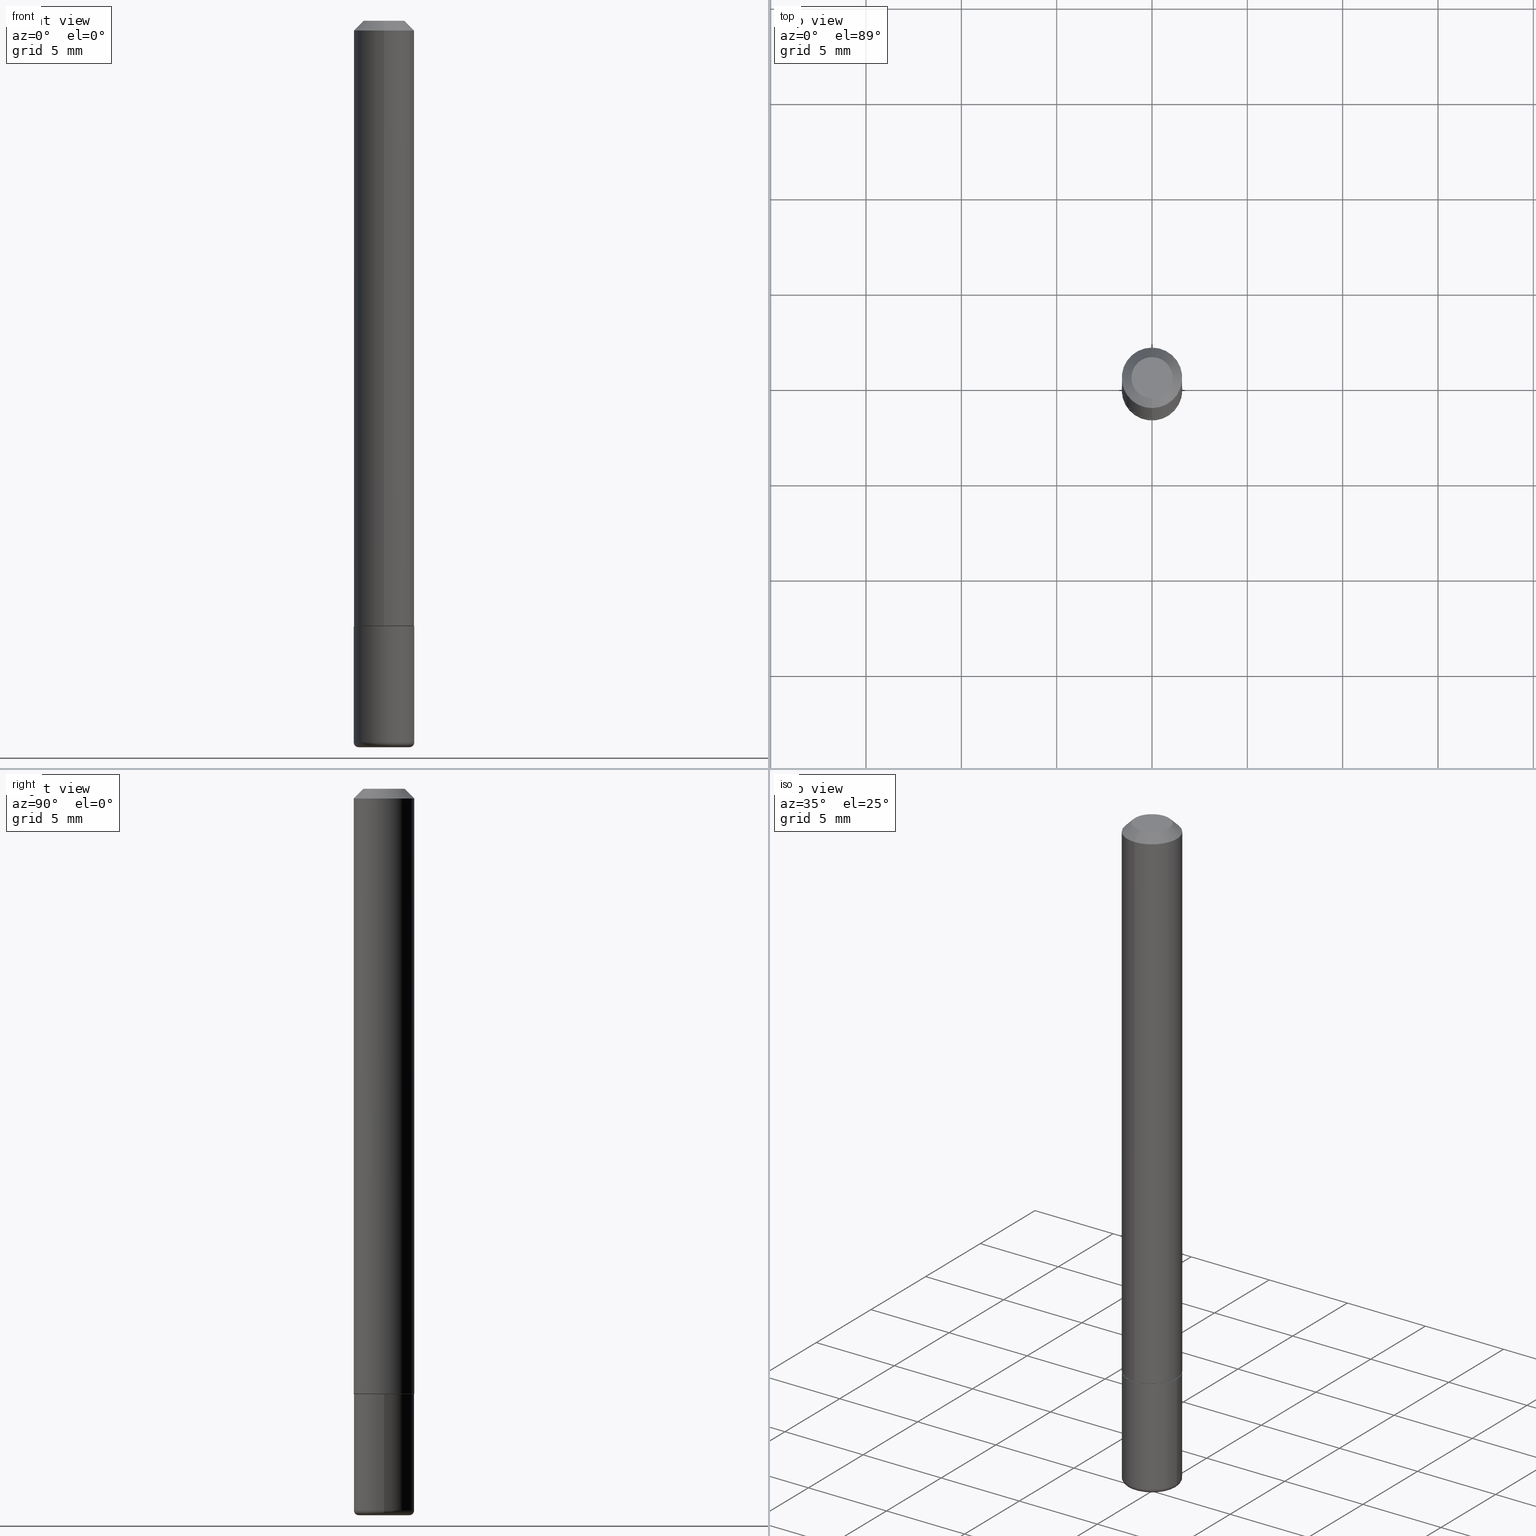
[diagram: canonical four-view strip — front | top / right | iso, engineering-drawing reading convention]
A machine part, canonical four-view strip (front | top / right | iso — engineering-drawing reading convention). The complete STEP part file that produces these views, byte-faithful:
ISO-10303-21;
HEADER;
FILE_DESCRIPTION (( 'STEP AP203' ),
    '1' );
FILE_NAME ('38770.STEP',
    '2024-03-03T11:43:34',
    ( '' ),
    ( '' ),
    'SwSTEP 2.0',
    'SolidWorks 2023',
    '' );
FILE_SCHEMA (( 'CONFIG_CONTROL_DESIGN' ));
ENDSEC;

DATA;
#1 = DIRECTION ( 'NONE',  ( -6.982962677686265922E-15, -1.000000000000000000, 3.465099818506815949E-15 ) ) ;
#2 = EDGE_CURVE ( 'NONE', #137, #171, #287, .T. ) ;
#3 = CLOSED_SHELL ( 'NONE', ( #258, #327, #167, #191, #310, #297, #140, #318 ) ) ;
#4 = AXIS2_PLACEMENT_3D ( 'NONE', #261, #188, #229 ) ;
#5 = CARTESIAN_POINT ( 'NONE',  ( 3.668203209277706016E-29, -5.237222008264719754E-15, -1.500000000000000444 ) ) ;
#6 = CC_DESIGN_PERSON_AND_ORGANIZATION_ASSIGNMENT ( #389, #73, ( #124 ) ) ;
#7 = DIRECTION ( 'NONE',  ( -2.463890923374057666E-29, 3.465099818506815949E-15, 1.000000000000000000 ) ) ;
#8 = DIRECTION ( 'NONE',  ( 1.000000000000000000, -6.982962677686265133E-15, 0.000000000000000000 ) ) ;
#9 = ORIENTED_EDGE ( 'NONE', *, *, #88, .T. ) ;
#10 = CIRCLE ( 'NONE', #266, 0.06250000000000012490 ) ;
#11 = ORIENTED_EDGE ( 'NONE', *, *, #174, .F. ) ;
#12 = CARTESIAN_POINT ( 'NONE',  ( 3.643748521215853910E-29, -5.202307194876288105E-15, -1.490000000000000213 ) ) ;
#13 = AXIS2_PLACEMENT_3D ( 'NONE', #352, #285, #1 ) ;
#14 = DIRECTION ( 'NONE',  ( 5.024295867788231995E-15, 0.7071067811865739960, 0.7071067811865208164 ) ) ;
#15 = COORDINATED_UNIVERSAL_TIME_OFFSET ( 5, 0, .BEHIND. ) ;
#16 = VERTEX_POINT ( 'NONE', #264 ) ;
#17 = ORIENTED_EDGE ( 'NONE', *, *, #248, .F. ) ;
#18 = DIRECTION ( 'NONE',  ( -2.463890923374057666E-29, 3.465099818506815949E-15, 1.000000000000000000 ) ) ;
#19 =( NAMED_UNIT ( * ) SI_UNIT ( $, .STERADIAN. ) SOLID_ANGLE_UNIT ( ) );
#20 = VERTEX_POINT ( 'NONE', #328 ) ;
#21 = AXIS2_PLACEMENT_3D ( 'NONE', #379, #100, #163 ) ;
#22 = ORGANIZATION ( 'UNSPECIFIED', 'UNSPECIFIED', '' ) ;
#23 = PLANE ( 'NONE',  #295 ) ;
#24 = ORIENTED_EDGE ( 'NONE', *, *, #117, .T. ) ;
#25 = CARTESIAN_POINT ( 'NONE',  ( 0.000000000000000000, 0.000000000000000000, 0.000000000000000000 ) ) ;
#26 = ORIENTED_EDGE ( 'NONE', *, *, #143, .F. ) ;
#27 = AXIS2_PLACEMENT_3D ( 'NONE', #290, #7, #77 ) ;
#28 = CC_DESIGN_DATE_AND_TIME_ASSIGNMENT ( #282, #97, ( #202 ) ) ;
#29 = AXIS2_PLACEMENT_3D ( 'NONE', #161, #288, #267 ) ;
#30 = DIRECTION ( 'NONE',  ( -2.463890923374057666E-29, 3.465099818506815949E-15, 1.000000000000000000 ) ) ;
#31 = DIRECTION ( 'NONE',  ( 0.000000000000000000, 0.000000000000000000, 1.000000000000000000 ) ) ;
#32 = CARTESIAN_POINT ( 'NONE',  ( 0.05250000000000001887, -5.603827548843248915E-15, -1.500000000000000444 ) ) ;
#33 = ORIENTED_EDGE ( 'NONE', *, *, #82, .F. ) ;
#34 = COORDINATED_UNIVERSAL_TIME_OFFSET ( 5, 0, .BEHIND. ) ;
#35 = EDGE_CURVE ( 'NONE', #137, #275, #149, .T. ) ;
#36 = ORIENTED_EDGE ( 'NONE', *, *, #302, .T. ) ;
#37 = CIRCLE ( 'NONE', #60, 0.04250000000000002387 ) ;
#38 = PRODUCT ( '38770', '38770', '', ( #347 ) ) ;
#39 = CC_DESIGN_PERSON_AND_ORGANIZATION_ASSIGNMENT ( #63, #314, ( #202 ) ) ;
#40 = DIRECTION ( 'NONE',  ( -2.463890923374057666E-29, 3.465099818506815949E-15, 1.000000000000000000 ) ) ;
#41 = EDGE_LOOP ( 'NONE', ( #363, #54, #157, #298 ) ) ;
#42 = MANIFOLD_SOLID_BREP ( 'Body-Move/Copy2[2]', #3 ) ;
#43 = DIRECTION ( 'NONE',  ( 1.000000000000000000, -6.982962677686265133E-15, 0.000000000000000000 ) ) ;
#44 = PERSON_AND_ORGANIZATION ( #83, #22 ) ;
#45 = EDGE_LOOP ( 'NONE', ( #153, #169 ) ) ;
#46 = APPROVAL ( #380, 'UNSPECIFIED' ) ;
#47 = EDGE_LOOP ( 'NONE', ( #84, #154 ) ) ;
#48 = APPLICATION_CONTEXT ( 'configuration controlled 3d designs of mechanical parts and assemblies' ) ;
#49 = DIRECTION ( 'NONE',  ( -1.000000000000000000, 6.982962677686265922E-15, -4.876176775795935793E-29 ) ) ;
#50 = EDGE_CURVE ( 'NONE', #275, #137, #123, .T. ) ;
#51 = CARTESIAN_POINT ( 'NONE',  ( 3.079863654217572643E-29, -4.331374773133521120E-15, -1.250000000000000222 ) ) ;
#52 = EDGE_LOOP ( 'NONE', ( #206, #36, #11, #26 ) ) ;
#53 = CARTESIAN_POINT ( 'NONE',  ( -0.06250000000000001388, -4.339240224365048067E-15, -1.250000000000000222 ) ) ;
#54 = ORIENTED_EDGE ( 'NONE', *, *, #244, .T. ) ;
#55 = CARTESIAN_POINT ( 'NONE',  ( -3.601761448830052926E-16, -0.04250000000000002387, 1.205344527316432809E-16 ) ) ;
#56 = CARTESIAN_POINT ( 'NONE',  ( 3.079863654217572643E-29, -4.331374773133521120E-15, -1.250000000000000222 ) ) ;
#57 = DIRECTION ( 'NONE',  ( -2.445468806185136597E-29, 3.491481338843145583E-15, 1.000000000000000000 ) ) ;
#58 = ORIENTED_EDGE ( 'NONE', *, *, #99, .T. ) ;
#59 = VECTOR ( 'NONE', #254, 39.37007874015748854 ) ;
#60 = AXIS2_PLACEMENT_3D ( 'NONE', #107, #78, #340 ) ;
#61 = EDGE_CURVE ( 'NONE', #180, #137, #381, .T. ) ;
#62 = DIRECTION ( 'NONE',  ( -2.445468806185136877E-29, 3.491481338843145188E-15, 1.000000000000000000 ) ) ;
#63 = PERSON_AND_ORGANIZATION ( #83, #22 ) ;
#64 = PERSON_AND_ORGANIZATION_ROLE ( 'classification_officer' ) ;
#65 = TOROIDAL_SURFACE ( 'NONE', #210, 0.05250000000000001887, 0.01000000000000008174 ) ;
#66 = ORIENTED_EDGE ( 'NONE', *, *, #302, .F. ) ;
#67 = FACE_OUTER_BOUND ( 'NONE', #172, .T. ) ;
#68 = APPROVAL_ROLE ( '' ) ;
#69 = DIRECTION ( 'NONE',  ( -6.982962677686266711E-15, -1.000000000000000000, 3.491481338843145583E-15 ) ) ;
#70 = APPROVAL_PERSON_ORGANIZATION ( #44, #46, #71 ) ;
#71 = APPROVAL_ROLE ( '' ) ;
#72 = LENGTH_MEASURE_WITH_UNIT ( LENGTH_MEASURE( 0.02539999999999999897 ), #388 );
#73 = PERSON_AND_ORGANIZATION_ROLE ( 'design_supplier' ) ;
#74 = CARTESIAN_POINT ( 'NONE',  ( 3.079863654217572643E-29, -4.331374773133521120E-15, -1.250000000000000222 ) ) ;
#75 = VECTOR ( 'NONE', #127, 39.37007874015748143 ) ;
#76 = CC_DESIGN_APPROVAL ( #208, ( #202 ) ) ;
#77 = DIRECTION ( 'NONE',  ( -6.982962677686265922E-15, -1.000000000000000000, 3.483106191921934765E-15 ) ) ;
#78 = DIRECTION ( 'NONE',  ( -2.463890923374057666E-29, 3.465099818506815949E-15, 1.000000000000000000 ) ) ;
#79 = DESIGN_CONTEXT ( 'detailed design', #48, 'design' ) ;
#80 = EDGE_CURVE ( 'NONE', #361, #16, #106, .T. ) ;
#81 = CC_DESIGN_PERSON_AND_ORGANIZATION_ASSIGNMENT ( #279, #122, ( #38 ) ) ;
#82 = EDGE_CURVE ( 'NONE', #342, #20, #415, .T. ) ;
#83 = PERSON ( 'UNSPECIFIED', 'UNSPECIFIED', 'UNSPECIFIED', ('UNSPECIFIED'), ('UNSPECIFIED'), ('UNSPECIFIED') ) ;
#84 = ORIENTED_EDGE ( 'NONE', *, *, #414, .T. ) ;
#85 = ORIENTED_EDGE ( 'NONE', *, *, #80, .F. ) ;
#86 = LINE ( 'NONE', #176, #59 ) ;
#87 = CARTESIAN_POINT ( 'NONE',  ( 3.056836007731421306E-29, -4.364351673553933260E-15, -1.250000000000000222 ) ) ;
#88 = EDGE_CURVE ( 'NONE', #306, #216, #370, .T. ) ;
#89 = AXIS2_PLACEMENT_3D ( 'NONE', #131, #228, #236 ) ;
#90 = AXIS2_PLACEMENT_3D ( 'NONE', #292, #134, #263 ) ;
#91 = CARTESIAN_POINT ( 'NONE',  ( 3.668203209277706016E-29, -5.237222008264719754E-15, -1.500000000000000444 ) ) ;
#92 = APPROVAL_DATE_TIME ( #343, #208 ) ;
#93 = DIRECTION ( 'NONE',  ( -6.982962677686265133E-15, -1.000000000000000000, 4.370956789862812472E-15 ) ) ;
#94 = PERSON_AND_ORGANIZATION ( #83, #22 ) ;
#95 = ORIENTED_EDGE ( 'NONE', *, *, #102, .T. ) ;
#96 = DIRECTION ( 'NONE',  ( 6.982962677686265922E-15, 1.000000000000000000, -3.483106191921934765E-15 ) ) ;
#97 = DATE_TIME_ROLE ( 'creation_date' ) ;
#98 = CARTESIAN_POINT ( 'NONE',  ( 0.000000000000000000, 0.000000000000000000, 0.000000000000000000 ) ) ;
#99 = EDGE_CURVE ( 'NONE', #20, #16, #243, .T. ) ;
#100 = DIRECTION ( 'NONE',  ( -2.463890923374057666E-29, 3.465099818506815949E-15, 1.000000000000000000 ) ) ;
#101 = AXIS2_PLACEMENT_3D ( 'NONE', #51, #18, #240 ) ;
#102 = EDGE_CURVE ( 'NONE', #306, #16, #357, .T. ) ;
#103 = CARTESIAN_POINT ( 'NONE',  ( 4.927781846748132603E-31, -6.930199637013654924E-17, -0.02000000000000006981 ) ) ;
#104 = PERSON_AND_ORGANIZATION_ROLE ( 'creator' ) ;
#105 = CARTESIAN_POINT ( 'NONE',  ( 4.369837824924922257E-16, 0.06149999999999564843, -1.250000000000000666 ) ) ;
#106 = LINE ( 'NONE', #262, #186 ) ;
#107 = CARTESIAN_POINT ( 'NONE',  ( 6.586544559531654856E-46, -9.263005168494343437E-32, -2.673228955489647487E-17 ) ) ;
#108 = ORIENTED_EDGE ( 'NONE', *, *, #99, .F. ) ;
#109 = ADVANCED_FACE ( 'NONE', ( #322 ), #203, .T. ) ;
#110 = VECTOR ( 'NONE', #412, 39.37007874015748143 ) ;
#111 = DATE_AND_TIME ( #199, #231 ) ;
#112 = AXIS2_PLACEMENT_3D ( 'NONE', #181, #31, #312 ) ;
#113 = AXIS2_PLACEMENT_3D ( 'NONE', #387, #354, #128 ) ;
#114 = CARTESIAN_POINT ( 'NONE',  ( 0.000000000000000000, 0.000000000000000000, 0.000000000000000000 ) ) ;
#115 = CIRCLE ( 'NONE', #13, 0.04250000000000002387 ) ;
#116 = APPROVAL_STATUS ( 'not_yet_approved' ) ;
#117 = EDGE_CURVE ( 'NONE', #386, #180, #138, .T. ) ;
#118 = ORIENTED_EDGE ( 'NONE', *, *, #61, .T. ) ;
#119 = FACE_OUTER_BOUND ( 'NONE', #205, .T. ) ;
#120 = DIRECTION ( 'NONE',  ( -1.000000000000000000, 6.982962677686265922E-15, -4.876176775795935793E-29 ) ) ;
#121 = CARTESIAN_POINT ( 'NONE',  ( 0.000000000000000000, 0.000000000000000000, 0.000000000000000000 ) ) ;
#122 = PERSON_AND_ORGANIZATION_ROLE ( 'design_owner' ) ;
#123 = CIRCLE ( 'NONE', #113, 0.06250000000000001388 ) ;
#124 = PRODUCT_DEFINITION_FORMATION_WITH_SPECIFIED_SOURCE ( 'ANY', '', #38, .NOT_KNOWN. ) ;
#125 = DIRECTION ( 'NONE',  ( 6.982962677686265922E-15, 1.000000000000000000, -3.483106191921934765E-15 ) ) ;
#126 = EDGE_CURVE ( 'NONE', #16, #20, #175, .T. ) ;
#127 = DIRECTION ( 'NONE',  ( -2.445468806185136877E-29, 3.491481338843145188E-15, 1.000000000000000000 ) ) ;
#128 = DIRECTION ( 'NONE',  ( 1.000000000000000000, -6.982962677686261189E-15, 0.000000000000000000 ) ) ;
#129 = PERSON_AND_ORGANIZATION ( #83, #22 ) ;
#130 = CIRCLE ( 'NONE', #158, 0.05250000000000001887 ) ;
#131 = CARTESIAN_POINT ( 'NONE',  ( 3.643748521215853910E-29, -5.202307194876288105E-15, -1.490000000000000213 ) ) ;
#132 = DIRECTION ( 'NONE',  ( 4.937700262164541731E-15, 0.7071067811865442421, -0.7071067811865507924 ) ) ;
#133 = DIRECTION ( 'NONE',  ( -6.982962677686265922E-15, -1.000000000000000000, 3.483106191921934765E-15 ) ) ;
#134 = DIRECTION ( 'NONE',  ( -2.445468806185136597E-29, 3.491481338843145583E-15, 1.000000000000000000 ) ) ;
#135 = ORIENTED_EDGE ( 'NONE', *, *, #117, .F. ) ;
#136 = EDGE_LOOP ( 'NONE', ( #336, #135 ) ) ;
#137 = VERTEX_POINT ( 'NONE', #366 ) ;
#138 = CIRCLE ( 'NONE', #316, 0.05250000000000001887 ) ;
#139 = CONICAL_SURFACE ( 'NONE', #272, 0.06250000000000001388, 0.7853981633974471688 ) ;
#140 = ADVANCED_FACE ( 'NONE', ( #241 ), #338, .F. ) ;
#141 = FACE_OUTER_BOUND ( 'NONE', #332, .T. ) ;
#142 = SHAPE_DEFINITION_REPRESENTATION ( #190, #281 ) ;
#143 = EDGE_CURVE ( 'NONE', #198, #216, #86, .T. ) ;
#144 = APPROVAL_DATE_TIME ( #111, #46 ) ;
#145 = DIRECTION ( 'NONE',  ( -2.463890923374057386E-29, 3.465099818506815949E-15, 1.000000000000000000 ) ) ;
#146 = CONICAL_SURFACE ( 'NONE', #101, 0.06149999999999997830, 0.7853981633974824739 ) ;
#147 = EDGE_CURVE ( 'NONE', #216, #20, #184, .T. ) ;
#148 = DIRECTION ( 'NONE',  ( -2.445468806185136597E-29, 3.491481338843145583E-15, 1.000000000000000000 ) ) ;
#149 = CIRCLE ( 'NONE', #404, 0.06250000000000001388 ) ;
#150 = CARTESIAN_POINT ( 'NONE',  ( 4.440892098500787878E-16, 0.06249999999999578809, -1.249000000000000554 ) ) ;
#151 = AXIS2_PLACEMENT_3D ( 'NONE', #25, #148, #407 ) ;
#152 = PERSON_AND_ORGANIZATION ( #83, #22 ) ;
#153 = ORIENTED_EDGE ( 'NONE', *, *, #399, .F. ) ;
#154 = ORIENTED_EDGE ( 'NONE', *, *, #373, .T. ) ;
#155 = COORDINATED_UNIVERSAL_TIME_OFFSET ( 5, 0, .BEHIND. ) ;
#156 = APPLICATION_PROTOCOL_DEFINITION ( 'international standard', 'config_control_design', 1994, #268 ) ;
#157 = ORIENTED_EDGE ( 'NONE', *, *, #35, .F. ) ;
#158 = AXIS2_PLACEMENT_3D ( 'NONE', #324, #358, #8 ) ;
#159 = CC_DESIGN_APPROVAL ( #46, ( #405 ) ) ;
#160 = CARTESIAN_POINT ( 'NONE',  ( 0.06250000000000001388, -4.364351673553918173E-16, 3.047610484872460571E-30 ) ) ;
#161 = CARTESIAN_POINT ( 'NONE',  ( 3.079863654217572643E-29, -4.331374773133521120E-15, -1.250000000000000222 ) ) ;
#162 = AXIS2_PLACEMENT_3D ( 'NONE', #305, #214, #96 ) ;
#163 = DIRECTION ( 'NONE',  ( -6.982962677686265133E-15, -1.000000000000000000, 4.370956789862812472E-15 ) ) ;
#164 = DIRECTION ( 'NONE',  ( -2.463890923374057666E-29, 3.465099818506815949E-15, 1.000000000000000000 ) ) ;
#165 = EDGE_LOOP ( 'NONE', ( #66, #331, #252, #369 ) ) ;
#166 = EDGE_LOOP ( 'NONE', ( #296, #95, #108, #207 ) ) ;
#167 = ADVANCED_FACE ( 'NONE', ( #276 ), #359, .T. ) ;
#168 = AXIS2_PLACEMENT_3D ( 'NONE', #213, #274, #270 ) ;
#169 = ORIENTED_EDGE ( 'NONE', *, *, #353, .F. ) ;
#170 = MANIFOLD_SOLID_BREP ( 'Body-Move/Copy2[1]', #325 ) ;
#171 = VERTEX_POINT ( 'NONE', #309 ) ;
#172 = EDGE_LOOP ( 'NONE', ( #392, #378, #294, #409 ) ) ;
#173 = FACE_OUTER_BOUND ( 'NONE', #41, .T. ) ;
#174 = EDGE_CURVE ( 'NONE', #216, #306, #10, .T. ) ;
#175 = CIRCLE ( 'NONE', #27, 0.06250000000000001388 ) ;
#176 = CARTESIAN_POINT ( 'NONE',  ( -4.294522046776743965E-16, -0.06150000000000430816, -1.250000000000000000 ) ) ;
#177 = DIRECTION ( 'NONE',  ( 1.000000000000000000, -6.982962677686269077E-15, 0.000000000000000000 ) ) ;
#178 = AXIS2_PLACEMENT_3D ( 'NONE', #91, #321, #120 ) ;
#179 = ORIENTED_EDGE ( 'NONE', *, *, #35, .T. ) ;
#180 = VERTEX_POINT ( 'NONE', #32 ) ;
#181 = CARTESIAN_POINT ( 'NONE',  ( 0.000000000000000000, 0.000000000000000000, 0.000000000000000000 ) ) ;
#182 = ORIENTED_EDGE ( 'NONE', *, *, #234, .F. ) ;
#183 = CARTESIAN_POINT ( 'NONE',  ( 2.967759138016664535E-16, 0.04250000000000002387, -1.606328870639880302E-16 ) ) ;
#184 = LINE ( 'NONE', #217, #110 ) ;
#185 = DIMENSIONAL_EXPONENTS ( 1.000000000000000000, 0.000000000000000000, 0.000000000000000000, 0.000000000000000000, 0.000000000000000000, 0.000000000000000000, 0.000000000000000000 ) ;
#186 = VECTOR ( 'NONE', #132, 39.37007874015748143 ) ;
#187 = CIRCLE ( 'NONE', #29, 0.06149999999999997830 ) ;
#188 = DIRECTION ( 'NONE',  ( 7.105427357601001859E-15, 1.000000000000000000, -3.491481338843145583E-15 ) ) ;
#189 = CARTESIAN_POINT ( 'NONE',  ( 4.440892098500630106E-16, 0.06250000000000006939, -2.165687386566762434E-16 ) ) ;
#190 = PRODUCT_DEFINITION_SHAPE ( 'NONE', 'NONE',  #202 ) ;
#191 = ADVANCED_FACE ( 'NONE', ( #119 ), #139, .T. ) ;
#192 = FACE_OUTER_BOUND ( 'NONE', #52, .T. ) ;
#193 = DIRECTION ( 'NONE',  ( -2.445468806185136597E-29, 3.491481338843145583E-15, 1.000000000000000000 ) ) ;
#194 =( CONVERSION_BASED_UNIT ( 'INCH', #72 ) LENGTH_UNIT ( ) NAMED_UNIT ( #185 ) );
#195 =( GEOMETRIC_REPRESENTATION_CONTEXT ( 3 ) GLOBAL_UNCERTAINTY_ASSIGNED_CONTEXT ( ( #235 ) ) GLOBAL_UNIT_ASSIGNED_CONTEXT ( ( #194, #367, #19 ) ) REPRESENTATION_CONTEXT ( 'NONE', 'WORKASPACE' ) );
#196 = DIRECTION ( 'NONE',  ( -6.982962677686265922E-15, -1.000000000000000000, 4.442029257990673709E-15 ) ) ;
#197 = ORIENTED_EDGE ( 'NONE', *, *, #82, .T. ) ;
#198 = VERTEX_POINT ( 'NONE', #351 ) ;
#199 = CALENDAR_DATE ( 2024, 3, 3 ) ;
#200 = ADVANCED_FACE ( 'NONE', ( #67 ), #313, .T. ) ;
#201 = ORIENTED_EDGE ( 'NONE', *, *, #102, .F. ) ;
#202 = PRODUCT_DEFINITION ( 'UNKNOWN', '', #124, #79 ) ;
#203 = TOROIDAL_SURFACE ( 'NONE', #89, 0.05250000000000001887, 0.01000000000000008174 ) ;
#204 = CIRCLE ( 'NONE', #289, 0.06250000000000001388 ) ;
#205 = EDGE_LOOP ( 'NONE', ( #33, #17, #269, #372 ) ) ;
#206 = ORIENTED_EDGE ( 'NONE', *, *, #399, .T. ) ;
#207 = ORIENTED_EDGE ( 'NONE', *, *, #147, .F. ) ;
#208 = APPROVAL ( #223, 'UNSPECIFIED' ) ;
#209 = VECTOR ( 'NONE', #377, 39.37007874015748143 ) ;
#210 = AXIS2_PLACEMENT_3D ( 'NONE', #12, #341, #335 ) ;
#211 = APPLICATION_PROTOCOL_DEFINITION ( 'international standard', 'config_control_design', 1994, #48 ) ;
#212 = DIRECTION ( 'NONE',  ( 6.982962677686265922E-15, 1.000000000000000000, -3.465099818506815949E-15 ) ) ;
#213 = CARTESIAN_POINT ( 'NONE',  ( 3.079863654217572643E-29, -4.331374773133521120E-15, -1.250000000000000222 ) ) ;
#214 = DIRECTION ( 'NONE',  ( 2.463890923374057666E-29, -3.465099818506815949E-15, -1.000000000000000000 ) ) ;
#215 = COORDINATED_UNIVERSAL_TIME_OFFSET ( 5, 0, .BEHIND. ) ;
#216 = VERTEX_POINT ( 'NONE', #291 ) ;
#217 = CARTESIAN_POINT ( 'NONE',  ( -4.364351673553921131E-16, -0.06250000000000006939, 2.165687386566762434E-16 ) ) ;
#218 = CALENDAR_DATE ( 2024, 3, 3 ) ;
#219 = CARTESIAN_POINT ( 'NONE',  ( -0.06250000000000005551, -4.758217985026225489E-15, -1.490000000000000213 ) ) ;
#220 = ORIENTED_EDGE ( 'NONE', *, *, #244, .F. ) ;
#221 = AXIS2_PLACEMENT_3D ( 'NONE', #121, #253, #311 ) ;
#222 = CARTESIAN_POINT ( 'NONE',  ( 4.405364961712931735E-16, 0.06149999999999564843, -1.250000000000000666 ) ) ;
#223 = APPROVAL_STATUS ( 'not_yet_approved' ) ;
#224 = EDGE_LOOP ( 'NONE', ( #201, #9, #329, #242 ) ) ;
#225 = CARTESIAN_POINT ( 'NONE',  ( 4.927781846748132603E-31, -6.930199637013654924E-17, -0.02000000000000006981 ) ) ;
#226 = APPROVAL_ROLE ( '' ) ;
#227 = EDGE_CURVE ( 'NONE', #180, #386, #130, .T. ) ;
#228 = DIRECTION ( 'NONE',  ( -2.445468806185136597E-29, 3.491481338843145583E-15, 1.000000000000000000 ) ) ;
#229 = DIRECTION ( 'NONE',  ( -1.000000000000000000, 7.105427357600964782E-15, 0.000000000000000000 ) ) ;
#230 = CALENDAR_DATE ( 2024, 3, 3 ) ;
#231 = LOCAL_TIME ( 6, 43, 34.00000000000000000, #15 ) ;
#232 = FACE_OUTER_BOUND ( 'NONE', #165, .T. ) ;
#233 = DIRECTION ( 'NONE',  ( -4.851104656540957964E-15, -0.7071067811865491270, -0.7071067811865459074 ) ) ;
#234 = EDGE_CURVE ( 'NONE', #342, #361, #37, .T. ) ;
#235 = UNCERTAINTY_MEASURE_WITH_UNIT (LENGTH_MEASURE( 1.000000000000000082E-05 ), #194, 'distance_accuracy_value', 'NONE');
#236 = DIRECTION ( 'NONE',  ( 1.000000000000000000, -6.982962677686266711E-15, 4.883557194083112901E-29 ) ) ;
#237 = DIRECTION ( 'NONE',  ( 1.000000000000000000, -6.982962677686275388E-15, 0.000000000000000000 ) ) ;
#238 = AXIS2_PLACEMENT_3D ( 'NONE', #56, #145, #273 ) ;
#239 = CC_DESIGN_APPROVAL ( #364, ( #124 ) ) ;
#240 = DIRECTION ( 'NONE',  ( -6.982962677686265922E-15, -1.000000000000000000, 4.442029257990673709E-15 ) ) ;
#241 = FACE_OUTER_BOUND ( 'NONE', #45, .T. ) ;
#242 = ORIENTED_EDGE ( 'NONE', *, *, #126, .F. ) ;
#243 = CIRCLE ( 'NONE', #391, 0.06250000000000001388 ) ;
#244 = EDGE_CURVE ( 'NONE', #386, #275, #365, .T. ) ;
#245 = DIRECTION ( 'NONE',  ( 2.463890923374057386E-29, -3.465099818506815949E-15, -1.000000000000000000 ) ) ;
#246 = PLANE ( 'NONE',  #317 ) ;
#247 = PLANE ( 'NONE',  #178 ) ;
#248 = EDGE_CURVE ( 'NONE', #361, #342, #115, .T. ) ;
#249 = FACE_OUTER_BOUND ( 'NONE', #303, .T. ) ;
#250 = APPROVAL_PERSON_ORGANIZATION ( #255, #208, #68 ) ;
#251 = CARTESIAN_POINT ( 'NONE',  ( -0.06250000000000001388, 4.440892098500627148E-16, -3.074334431409317165E-30 ) ) ;
#252 = ORIENTED_EDGE ( 'NONE', *, *, #143, .T. ) ;
#253 = DIRECTION ( 'NONE',  ( -2.463890923374057666E-29, 3.465099818506815949E-15, 1.000000000000000000 ) ) ;
#254 = DIRECTION ( 'NONE',  ( -4.937700262164715281E-15, -0.7071067811865691111, 0.7071067811865257013 ) ) ;
#255 = PERSON_AND_ORGANIZATION ( #83, #22 ) ;
#256 = VECTOR ( 'NONE', #233, 39.37007874015748143 ) ;
#257 = LOCAL_TIME ( 6, 43, 34.00000000000000000, #34 ) ;
#258 = ADVANCED_FACE ( 'NONE', ( #192 ), #146, .T. ) ;
#259 = ORIENTED_EDGE ( 'NONE', *, *, #234, .T. ) ;
#260 = SECURITY_CLASSIFICATION_LEVEL ( 'unclassified' ) ;
#261 = CARTESIAN_POINT ( 'NONE',  ( -0.05250000000000001887, -4.829272258602234782E-15, -1.490000000000000213 ) ) ;
#262 = CARTESIAN_POINT ( 'NONE',  ( 4.364351673553922118E-16, 0.06249999999999995143, -0.02000000000000028491 ) ) ;
#263 = DIRECTION ( 'NONE',  ( 1.000000000000000000, -6.982962677686269077E-15, 0.000000000000000000 ) ) ;
#264 = CARTESIAN_POINT ( 'NONE',  ( 4.364351673553922118E-16, 0.06249999999999995143, -0.02000000000000028491 ) ) ;
#265 = DIRECTION ( 'NONE',  ( -2.445468806185136597E-29, 3.491481338843145583E-15, 1.000000000000000000 ) ) ;
#266 = AXIS2_PLACEMENT_3D ( 'NONE', #403, #406, #93 ) ;
#267 = DIRECTION ( 'NONE',  ( -6.982962677686265922E-15, -1.000000000000000000, 4.442029257990673709E-15 ) ) ;
#268 = APPLICATION_CONTEXT ( 'configuration controlled 3d designs of mechanical parts and assemblies' ) ;
#269 = ORIENTED_EDGE ( 'NONE', *, *, #80, .T. ) ;
#270 = DIRECTION ( 'NONE',  ( -6.982962677686265922E-15, -1.000000000000000000, 4.442029257990673709E-15 ) ) ;
#271 = ADVANCED_FACE ( 'NONE', ( #141 ), #304, .T. ) ;
#272 = AXIS2_PLACEMENT_3D ( 'NONE', #225, #375, #125 ) ;
#273 = DIRECTION ( 'NONE',  ( -6.982962677686265922E-15, -1.000000000000000000, 3.465099818506815949E-15 ) ) ;
#274 = DIRECTION ( 'NONE',  ( -2.463890923374057666E-29, 3.465099818506815949E-15, 1.000000000000000000 ) ) ;
#275 = VERTEX_POINT ( 'NONE', #219 ) ;
#276 = FACE_OUTER_BOUND ( 'NONE', #411, .T. ) ;
#277 = AXIS2_PLACEMENT_3D ( 'NONE', #98, #265, #384 ) ;
#278 = DATE_AND_TIME ( #218, #345 ) ;
#279 = PERSON_AND_ORGANIZATION ( #83, #22 ) ;
#280 = ADVANCED_FACE ( 'NONE', ( #402 ), #247, .T. ) ;
#281 = ADVANCED_BREP_SHAPE_REPRESENTATION ( '38770', ( #170, #42, #112 ), #195 ) ;
#282 = DATE_AND_TIME ( #355, #299 ) ;
#283 = CIRCLE ( 'NONE', #90, 0.06250000000000001388 ) ;
#284 = COORDINATED_UNIVERSAL_TIME_OFFSET ( 5, 0, .BEHIND. ) ;
#285 = DIRECTION ( 'NONE',  ( -2.463890923374057666E-29, 3.465099818506815949E-15, 1.000000000000000000 ) ) ;
#286 = DIRECTION ( 'NONE',  ( 1.000000000000000000, -6.982962677686261189E-15, 0.000000000000000000 ) ) ;
#287 = LINE ( 'NONE', #160, #75 ) ;
#288 = DIRECTION ( 'NONE',  ( -2.463890923374057666E-29, 3.465099818506815949E-15, 1.000000000000000000 ) ) ;
#289 = AXIS2_PLACEMENT_3D ( 'NONE', #87, #57, #177 ) ;
#290 = CARTESIAN_POINT ( 'NONE',  ( 4.927781846748132603E-31, -6.930199637013654924E-17, -0.02000000000000006981 ) ) ;
#291 = CARTESIAN_POINT ( 'NONE',  ( -4.364351673553616927E-16, -0.06250000000000444089, -1.248999999999999888 ) ) ;
#292 = CARTESIAN_POINT ( 'NONE',  ( 3.056836007731421306E-29, -4.364351673553933260E-15, -1.250000000000000222 ) ) ;
#293 = DATE_AND_TIME ( #418, #344 ) ;
#294 = ORIENTED_EDGE ( 'NONE', *, *, #2, .T. ) ;
#295 = AXIS2_PLACEMENT_3D ( 'NONE', #183, #245, #212 ) ;
#296 = ORIENTED_EDGE ( 'NONE', *, *, #174, .T. ) ;
#297 = ADVANCED_FACE ( 'NONE', ( #232 ), #333, .T. ) ;
#298 = ORIENTED_EDGE ( 'NONE', *, *, #61, .F. ) ;
#299 = LOCAL_TIME ( 6, 43, 34.00000000000000000, #155 ) ;
#300 = CYLINDRICAL_SURFACE ( 'NONE', #326, 0.06250000000000006939 ) ;
#301 = FACE_OUTER_BOUND ( 'NONE', #47, .T. ) ;
#302 = EDGE_CURVE ( 'NONE', #334, #306, #356, .T. ) ;
#303 = EDGE_LOOP ( 'NONE', ( #385, #259 ) ) ;
#304 = CYLINDRICAL_SURFACE ( 'NONE', #151, 0.06250000000000001388 ) ;
#305 = CARTESIAN_POINT ( 'NONE',  ( 4.927781846748132603E-31, -6.930199637013654924E-17, -0.02000000000000006981 ) ) ;
#306 = VERTEX_POINT ( 'NONE', #150 ) ;
#307 = FACE_OUTER_BOUND ( 'NONE', #166, .T. ) ;
#308 = VERTEX_POINT ( 'NONE', #53 ) ;
#309 = CARTESIAN_POINT ( 'NONE',  ( 0.06250000000000001388, -4.800786840909324930E-15, -1.250000000000000222 ) ) ;
#310 = ADVANCED_FACE ( 'NONE', ( #397 ), #300, .T. ) ;
#311 = DIRECTION ( 'NONE',  ( -6.982962677686265922E-15, -1.000000000000000000, 3.465099818506815949E-15 ) ) ;
#312 = DIRECTION ( 'NONE',  ( 1.000000000000000000, 0.000000000000000000, 0.000000000000000000 ) ) ;
#313 = CYLINDRICAL_SURFACE ( 'NONE', #277, 0.06250000000000001388 ) ;
#314 = PERSON_AND_ORGANIZATION_ROLE ( 'creator' ) ;
#315 = EDGE_LOOP ( 'NONE', ( #220, #24, #118, #339 ) ) ;
#316 = AXIS2_PLACEMENT_3D ( 'NONE', #5, #193, #43 ) ;
#317 = AXIS2_PLACEMENT_3D ( 'NONE', #400, #368, #49 ) ;
#318 = ADVANCED_FACE ( 'NONE', ( #249 ), #23, .F. ) ;
#319 = ORIENTED_EDGE ( 'NONE', *, *, #2, .F. ) ;
#320 = EDGE_CURVE ( 'NONE', #275, #308, #408, .T. ) ;
#321 = DIRECTION ( 'NONE',  ( 2.438088387897960049E-29, -3.491481338843145188E-15, -1.000000000000000000 ) ) ;
#322 = FACE_OUTER_BOUND ( 'NONE', #315, .T. ) ;
#323 = CARTESIAN_POINT ( 'NONE',  ( 0.05250000000000001887, -5.568912735454817265E-15, -1.490000000000000213 ) ) ;
#324 = CARTESIAN_POINT ( 'NONE',  ( 3.668203209277706016E-29, -5.237222008264719754E-15, -1.500000000000000444 ) ) ;
#325 = CLOSED_SHELL ( 'NONE', ( #271, #346, #376, #200, #109, #280 ) ) ;
#326 = AXIS2_PLACEMENT_3D ( 'NONE', #114, #30, #349 ) ;
#327 = ADVANCED_FACE ( 'NONE', ( #307 ), #374, .T. ) ;
#328 = CARTESIAN_POINT ( 'NONE',  ( -4.287811248607203282E-16, -0.06250000000000008327, -0.01999999999999985123 ) ) ;
#329 = ORIENTED_EDGE ( 'NONE', *, *, #147, .T. ) ;
#330 = PRODUCT_RELATED_PRODUCT_CATEGORY ( 'detail', '', ( #38 ) ) ;
#331 = ORIENTED_EDGE ( 'NONE', *, *, #353, .T. ) ;
#332 = EDGE_LOOP ( 'NONE', ( #179, #416, #394, #319 ) ) ;
#333 = CONICAL_SURFACE ( 'NONE', #350, 0.06149999999999997830, 0.7853981633974824739 ) ;
#334 = VERTEX_POINT ( 'NONE', #222 ) ;
#335 = DIRECTION ( 'NONE',  ( 1.000000000000000000, -6.982962677686266711E-15, 4.883557194083112901E-29 ) ) ;
#336 = ORIENTED_EDGE ( 'NONE', *, *, #227, .F. ) ;
#337 = CC_DESIGN_PERSON_AND_ORGANIZATION_ASSIGNMENT ( #129, #104, ( #124 ) ) ;
#338 = PLANE ( 'NONE',  #238 ) ;
#339 = ORIENTED_EDGE ( 'NONE', *, *, #50, .F. ) ;
#340 = DIRECTION ( 'NONE',  ( -6.982962677686265922E-15, -1.000000000000000000, 3.465099818506815949E-15 ) ) ;
#341 = DIRECTION ( 'NONE',  ( -2.445468806185136597E-29, 3.491481338843145583E-15, 1.000000000000000000 ) ) ;
#342 = VERTEX_POINT ( 'NONE', #55 ) ;
#343 = DATE_AND_TIME ( #230, #257 ) ;
#344 = LOCAL_TIME ( 6, 43, 34.00000000000000000, #284 ) ;
#345 = LOCAL_TIME ( 6, 43, 34.00000000000000000, #215 ) ;
#346 = ADVANCED_FACE ( 'NONE', ( #173 ), #65, .T. ) ;
#347 = MECHANICAL_CONTEXT ( 'NONE', #268, 'mechanical' ) ;
#348 = AXIS2_PLACEMENT_3D ( 'NONE', #323, #69, #237 ) ;
#349 = DIRECTION ( 'NONE',  ( -6.982962677686265922E-15, -1.000000000000000000, 3.465099818506815949E-15 ) ) ;
#350 = AXIS2_PLACEMENT_3D ( 'NONE', #74, #40, #196 ) ;
#351 = CARTESIAN_POINT ( 'NONE',  ( -4.294522046776743965E-16, -0.06150000000000430816, -1.250000000000000000 ) ) ;
#352 = CARTESIAN_POINT ( 'NONE',  ( 6.586544559531654856E-46, -9.263005168494343437E-32, -2.673228955489647487E-17 ) ) ;
#353 = EDGE_CURVE ( 'NONE', #334, #198, #413, .T. ) ;
#354 = DIRECTION ( 'NONE',  ( -2.445468806185136597E-29, 3.491481338843145583E-15, 1.000000000000000000 ) ) ;
#355 = CALENDAR_DATE ( 2024, 3, 3 ) ;
#356 = LINE ( 'NONE', #105, #396 ) ;
#357 = LINE ( 'NONE', #189, #209 ) ;
#358 = DIRECTION ( 'NONE',  ( -2.445468806185136597E-29, 3.491481338843145583E-15, 1.000000000000000000 ) ) ;
#359 = CONICAL_SURFACE ( 'NONE', #162, 0.06250000000000001388, 0.7853981633974471688 ) ;
#360 = APPROVAL_DATE_TIME ( #293, #364 ) ;
#361 = VERTEX_POINT ( 'NONE', #398 ) ;
#362 = CC_DESIGN_DATE_AND_TIME_ASSIGNMENT ( #278, #410, ( #405 ) ) ;
#363 = ORIENTED_EDGE ( 'NONE', *, *, #227, .T. ) ;
#364 = APPROVAL ( #116, 'UNSPECIFIED' ) ;
#365 = CIRCLE ( 'NONE', #4, 0.01000000000000008174 ) ;
#366 = CARTESIAN_POINT ( 'NONE',  ( 0.06250000000000005551, -5.638742362231678986E-15, -1.490000000000000213 ) ) ;
#367 =( NAMED_UNIT ( * ) PLANE_ANGLE_UNIT ( ) SI_UNIT ( $, .RADIAN. ) );
#368 = DIRECTION ( 'NONE',  ( 2.438088387897960049E-29, -3.491481338843145188E-15, -1.000000000000000000 ) ) ;
#369 = ORIENTED_EDGE ( 'NONE', *, *, #88, .F. ) ;
#370 = CIRCLE ( 'NONE', #21, 0.06250000000000012490 ) ;
#371 = APPROVAL_PERSON_ORGANIZATION ( #152, #364, #226 ) ;
#372 = ORIENTED_EDGE ( 'NONE', *, *, #126, .T. ) ;
#373 = EDGE_CURVE ( 'NONE', #308, #171, #204, .T. ) ;
#374 = CYLINDRICAL_SURFACE ( 'NONE', #221, 0.06250000000000006939 ) ;
#375 = DIRECTION ( 'NONE',  ( 2.463890923374057666E-29, -3.465099818506815949E-15, -1.000000000000000000 ) ) ;
#376 = ADVANCED_FACE ( 'NONE', ( #301 ), #246, .F. ) ;
#377 = DIRECTION ( 'NONE',  ( -2.463890923374057666E-29, 3.465099818506815949E-15, 1.000000000000000000 ) ) ;
#378 = ORIENTED_EDGE ( 'NONE', *, *, #50, .T. ) ;
#379 = CARTESIAN_POINT ( 'NONE',  ( 3.077399763294198572E-29, -4.327909673315014220E-15, -1.249000000000000332 ) ) ;
#380 = APPROVAL_STATUS ( 'not_yet_approved' ) ;
#381 = CIRCLE ( 'NONE', #348, 0.01000000000000008174 ) ;
#382 = VECTOR ( 'NONE', #62, 39.37007874015748143 ) ;
#383 = CARTESIAN_POINT ( 'NONE',  ( 3.643748521215853910E-29, -5.202307194876288105E-15, -1.490000000000000213 ) ) ;
#384 = DIRECTION ( 'NONE',  ( 1.000000000000000000, -6.982962677686267499E-15, 4.876176775795935793E-29 ) ) ;
#385 = ORIENTED_EDGE ( 'NONE', *, *, #248, .T. ) ;
#386 = VERTEX_POINT ( 'NONE', #395 ) ;
#387 = CARTESIAN_POINT ( 'NONE',  ( 3.643748521215853910E-29, -5.202307194876288105E-15, -1.490000000000000213 ) ) ;
#388 =( LENGTH_UNIT ( ) NAMED_UNIT ( * ) SI_UNIT ( $, .METRE. ) );
#389 = PERSON_AND_ORGANIZATION ( #83, #22 ) ;
#390 = DIRECTION ( 'NONE',  ( -2.445468806185136597E-29, 3.491481338843145583E-15, 1.000000000000000000 ) ) ;
#391 = AXIS2_PLACEMENT_3D ( 'NONE', #103, #164, #133 ) ;
#392 = ORIENTED_EDGE ( 'NONE', *, *, #320, .F. ) ;
#393 = CC_DESIGN_SECURITY_CLASSIFICATION ( #405, ( #124 ) ) ;
#394 = ORIENTED_EDGE ( 'NONE', *, *, #414, .F. ) ;
#395 = CARTESIAN_POINT ( 'NONE',  ( -0.05250000000000001887, -4.811202528508445566E-15, -1.500000000000000444 ) ) ;
#396 = VECTOR ( 'NONE', #14, 39.37007874015748854 ) ;
#397 = FACE_OUTER_BOUND ( 'NONE', #224, .T. ) ;
#398 = CARTESIAN_POINT ( 'NONE',  ( 3.666055405785293080E-16, 0.04250000000000002387, -1.739990318414362306E-16 ) ) ;
#399 = EDGE_CURVE ( 'NONE', #198, #334, #187, .T. ) ;
#400 = CARTESIAN_POINT ( 'NONE',  ( 3.056836007731421306E-29, -4.364351673553933260E-15, -1.250000000000000222 ) ) ;
#401 = CC_DESIGN_PERSON_AND_ORGANIZATION_ASSIGNMENT ( #94, #64, ( #405 ) ) ;
#402 = FACE_OUTER_BOUND ( 'NONE', #136, .T. ) ;
#403 = CARTESIAN_POINT ( 'NONE',  ( 3.077399763294198572E-29, -4.327909673315014220E-15, -1.249000000000000332 ) ) ;
#404 = AXIS2_PLACEMENT_3D ( 'NONE', #383, #390, #286 ) ;
#405 = SECURITY_CLASSIFICATION ( '', '', #260 ) ;
#406 = DIRECTION ( 'NONE',  ( -2.463890923374057666E-29, 3.465099818506815949E-15, 1.000000000000000000 ) ) ;
#407 = DIRECTION ( 'NONE',  ( 1.000000000000000000, -6.982962677686267499E-15, 4.876176775795935793E-29 ) ) ;
#408 = LINE ( 'NONE', #251, #382 ) ;
#409 = ORIENTED_EDGE ( 'NONE', *, *, #373, .F. ) ;
#410 = DATE_TIME_ROLE ( 'classification_date' ) ;
#411 = EDGE_LOOP ( 'NONE', ( #182, #197, #58, #85 ) ) ;
#412 = DIRECTION ( 'NONE',  ( -2.463890923374057666E-29, 3.465099818506815949E-15, 1.000000000000000000 ) ) ;
#413 = CIRCLE ( 'NONE', #168, 0.06149999999999997830 ) ;
#414 = EDGE_CURVE ( 'NONE', #171, #308, #283, .T. ) ;
#415 = LINE ( 'NONE', #417, #256 ) ;
#416 = ORIENTED_EDGE ( 'NONE', *, *, #320, .T. ) ;
#417 = CARTESIAN_POINT ( 'NONE',  ( -4.287811248607203282E-16, -0.06250000000000008327, -0.01999999999999985123 ) ) ;
#418 = CALENDAR_DATE ( 2024, 3, 3 ) ;
ENDSEC;
END-ISO-10303-21;
